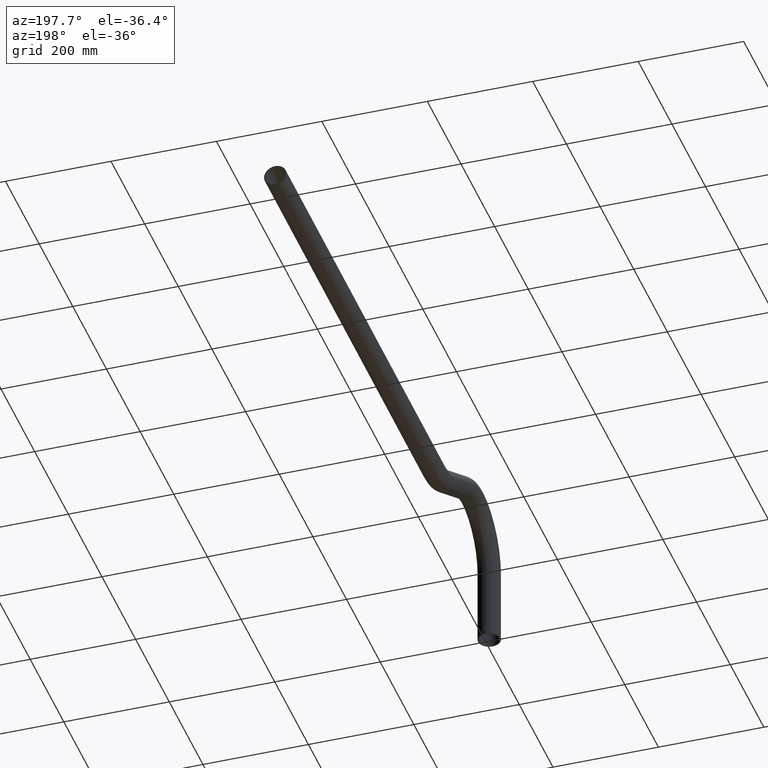
[diagram: clean part render]
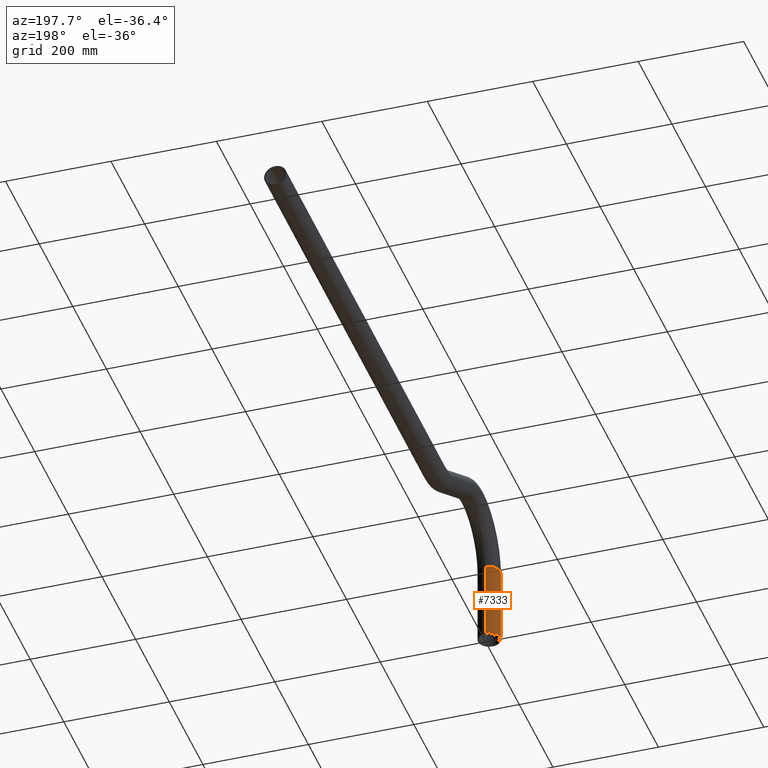
[diagram: same view with one face highlighted and labeled with its STEP entity id]
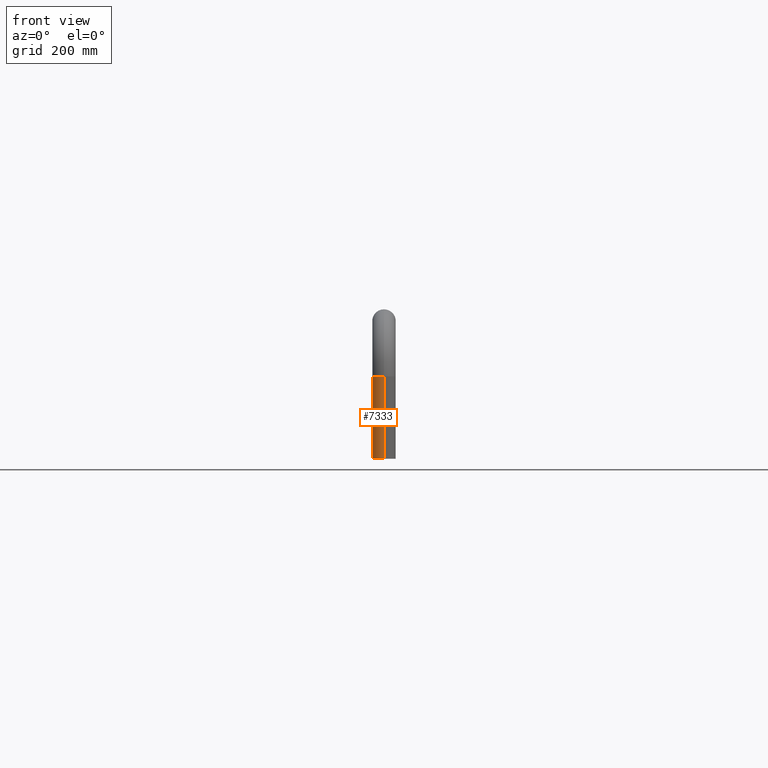
[diagram: same view with one face highlighted and labeled with its STEP entity id]
A machine part, auxiliary view. The second image highlights one B-rep face of the part: STEP entity #7333.
A second angle (front view) of the same face is appended — the face is thin or edge-on in the first view.
In plain terms, the highlighted cylindrical surface (edge-blend (fillet) strip) has radius 21.2 mm, axis along (-0, -0, -1).
Its self-contained STEP definition (entity closure, byte-faithful):
#548 = VERTEX_POINT ( 'NONE', #2926 ) ;
#1361 = AXIS2_PLACEMENT_3D ( 'NONE', #10081, #5572, #9961 ) ;
#1841 = ORIENTED_EDGE ( 'NONE', *, *, #5234, .T. ) ;
#1919 = VERTEX_POINT ( 'NONE', #4157 ) ;
#1940 = CARTESIAN_POINT ( 'NONE',  ( 2.596251214192388800E-015, -42.40000000000041800, 74.39999999999996300 ) ) ;
#1990 = DIRECTION ( 'NONE',  ( 0.0000000000000000000, 1.000000000000000000, 0.0000000000000000000 ) ) ;
#2080 = CIRCLE ( 'NONE', #7247, 21.19999999999999900 ) ;
#2390 = AXIS2_PLACEMENT_3D ( 'NONE', #9051, #6387, #1990 ) ;
#2859 = CARTESIAN_POINT ( 'NONE',  ( 0.0000000000000000000, -4.163336342344337000E-013, 74.39999999999996300 ) ) ;
#2926 = CARTESIAN_POINT ( 'NONE',  ( 0.0000000000000000000, -4.163336342344337000E-013, 74.39999999999996300 ) ) ;
#3490 = CARTESIAN_POINT ( 'NONE',  ( 2.596251214192388800E-015, -42.40000000000041800, 74.39999999999996300 ) ) ;
#4157 = CARTESIAN_POINT ( 'NONE',  ( 2.596251214192389200E-015, -42.40000000000042500, -74.40000000000002000 ) ) ;
#5142 = DIRECTION ( 'NONE',  ( 1.000000000000000000, 0.0000000000000000000, 0.0000000000000000000 ) ) ;
#5170 = EDGE_LOOP ( 'NONE', ( #10882, #7488, #1841, #5346 ) ) ;
#5234 = EDGE_CURVE ( 'NONE', #548, #7178, #5535, .T. ) ;
#5252 = LINE ( 'NONE', #3490, #5536 ) ;
#5346 = ORIENTED_EDGE ( 'NONE', *, *, #10032, .T. ) ;
#5356 = FACE_OUTER_BOUND ( 'NONE', #5170, .T. ) ;
#5535 = LINE ( 'NONE', #2859, #6490 ) ;
#5536 = VECTOR ( 'NONE', #8770, 1000.000000000000000 ) ;
#5572 = DIRECTION ( 'NONE',  ( 0.0000000000000000000, 0.0000000000000000000, 1.000000000000000000 ) ) ;
#6387 = DIRECTION ( 'NONE',  ( -0.0000000000000000000, -6.994852725712932700E-017, -1.000000000000000000 ) ) ;
#6490 = VECTOR ( 'NONE', #7274, 1000.000000000000000 ) ;
#6830 = CARTESIAN_POINT ( 'NONE',  ( 0.0000000000000000000, -21.20000000000042600, -74.40000000000002000 ) ) ;
#7178 = VERTEX_POINT ( 'NONE', #11290 ) ;
#7247 = AXIS2_PLACEMENT_3D ( 'NONE', #6830, #10377, #5142 ) ;
#7274 = DIRECTION ( 'NONE',  ( -0.0000000000000000000, -6.994852725712932700E-017, -1.000000000000000000 ) ) ;
#7333 = ADVANCED_FACE ( 'NONE', ( #5356 ), #9471, .T. ) ;
#7488 = ORIENTED_EDGE ( 'NONE', *, *, #7854, .F. ) ;
#7854 = EDGE_CURVE ( 'NONE', #548, #11172, #10827, .T. ) ;
#8770 = DIRECTION ( 'NONE',  ( -0.0000000000000000000, -6.994852725712932700E-017, -1.000000000000000000 ) ) ;
#9051 = CARTESIAN_POINT ( 'NONE',  ( 0.0000000000000000000, -21.20000000000041500, 74.39999999999996300 ) ) ;
#9471 = CYLINDRICAL_SURFACE ( 'NONE', #2390, 21.19999999999999900 ) ;
#9961 = DIRECTION ( 'NONE',  ( 1.000000000000000000, 0.0000000000000000000, 0.0000000000000000000 ) ) ;
#10032 = EDGE_CURVE ( 'NONE', #7178, #1919, #2080, .T. ) ;
#10081 = CARTESIAN_POINT ( 'NONE',  ( 0.0000000000000000000, -21.20000000000041500, 74.39999999999996300 ) ) ;
#10377 = DIRECTION ( 'NONE',  ( 0.0000000000000000000, 0.0000000000000000000, 1.000000000000000000 ) ) ;
#10469 = EDGE_CURVE ( 'NONE', #11172, #1919, #5252, .T. ) ;
#10827 = CIRCLE ( 'NONE', #1361, 21.19999999999999900 ) ;
#10882 = ORIENTED_EDGE ( 'NONE', *, *, #10469, .F. ) ;
#11172 = VERTEX_POINT ( 'NONE', #1940 ) ;
#11290 = CARTESIAN_POINT ( 'NONE',  ( 0.0000000000000000000, -4.267419750902945500E-013, -74.40000000000002000 ) ) ;